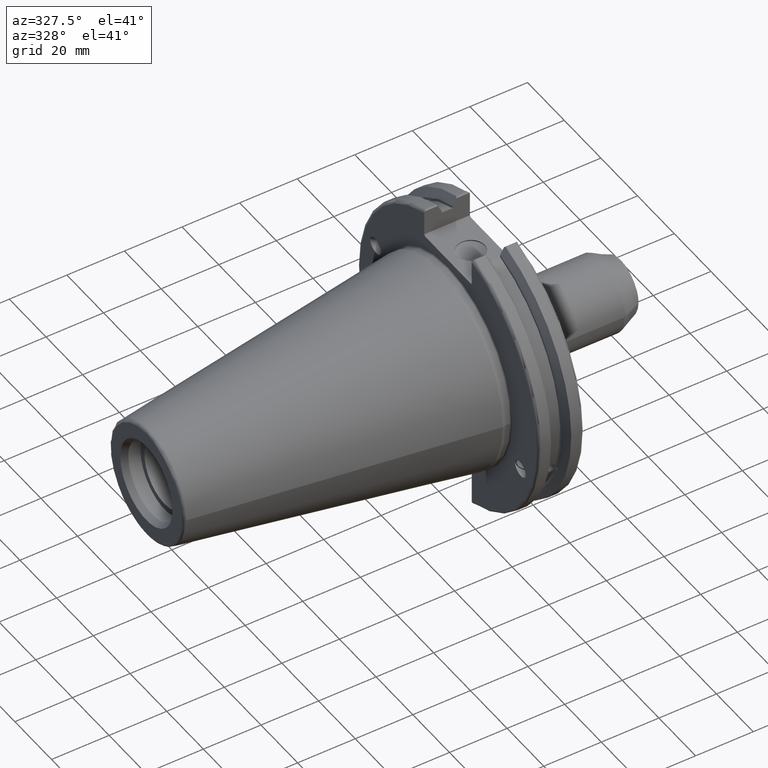
[diagram: clean part render]
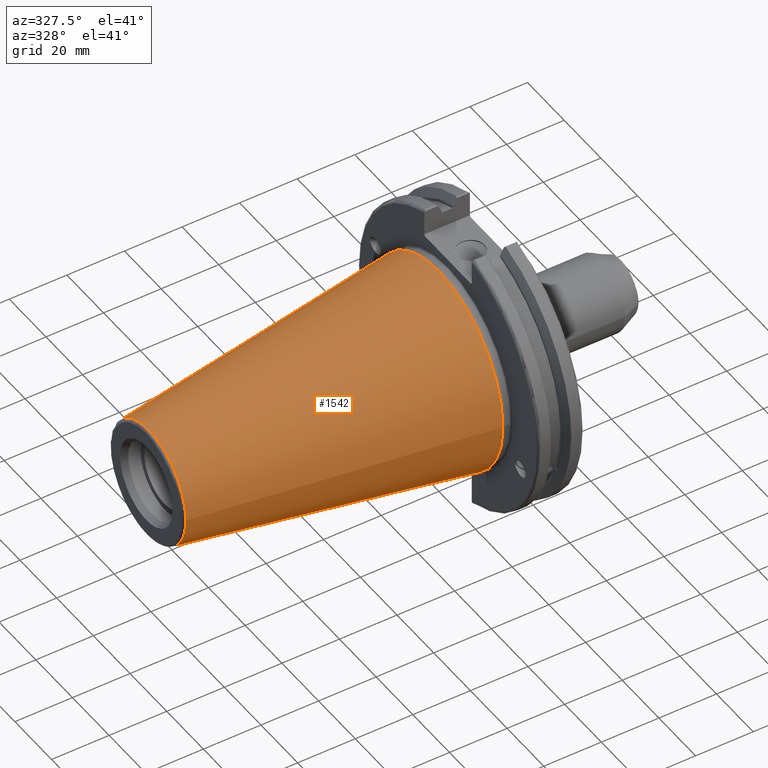
[diagram: same view with one face highlighted and labeled with its STEP entity id]
A machine part, auxiliary view. The second image highlights one B-rep face of the part: STEP entity #1542.
In plain terms, the highlighted conical surface has half-angle 8.297 deg.
Its self-contained STEP definition (entity closure, byte-faithful):
#159=CIRCLE('',#1713,20.233121911427);
#160=CIRCLE('',#1714,20.233121911427);
#164=CIRCLE('',#1720,34.925);
#184=CONICAL_SURFACE('',#1719,27.5166666666666,0.14481249823894);
#247=FACE_OUTER_BOUND('',#351,.T.);
#351=EDGE_LOOP('',(#1327,#1328,#1329,#1330,#1331));
#458=LINE('',#3139,#551);
#551=VECTOR('',#2092,27.5166666666666);
#753=VERTEX_POINT('',#3126);
#754=VERTEX_POINT('',#3127);
#757=VERTEX_POINT('',#3137);
#960=EDGE_CURVE('',#753,#754,#159,.T.);
#961=EDGE_CURVE('',#754,#753,#160,.T.);
#965=EDGE_CURVE('',#757,#757,#164,.T.);
#966=EDGE_CURVE('',#757,#754,#458,.T.);
#1327=ORIENTED_EDGE('',*,*,#965,.F.);
#1328=ORIENTED_EDGE('',*,*,#966,.T.);
#1329=ORIENTED_EDGE('',*,*,#960,.F.);
#1330=ORIENTED_EDGE('',*,*,#961,.F.);
#1331=ORIENTED_EDGE('',*,*,#966,.F.);
#1542=ADVANCED_FACE('',(#247),#184,.T.);
#1713=AXIS2_PLACEMENT_3D('',#3128,#2076,#2077);
#1714=AXIS2_PLACEMENT_3D('',#3129,#2078,#2079);
#1719=AXIS2_PLACEMENT_3D('',#3136,#2088,#2089);
#1720=AXIS2_PLACEMENT_3D('',#3138,#2090,#2091);
#2076=DIRECTION('center_axis',(-1.,0.,0.));
#2077=DIRECTION('ref_axis',(0.,-1.,3.06161699786838E-17));
#2078=DIRECTION('center_axis',(-1.,0.,0.));
#2079=DIRECTION('ref_axis',(0.,-1.,3.06161699786838E-17));
#2088=DIRECTION('center_axis',(1.,0.,0.));
#2089=DIRECTION('ref_axis',(0.,1.,0.));
#2090=DIRECTION('center_axis',(1.,0.,0.));
#2091=DIRECTION('ref_axis',(0.,0.,-1.));
#2092=DIRECTION('',(-0.989532981063281,0.144306893071729,1.76724974695192E-17));
#3126=CARTESIAN_POINT('',(-100.744306893072,-2.47784279855872E-15,20.233121911427));
#3127=CARTESIAN_POINT('',(-100.744306893072,-20.233121911427,-2.47784279855872E-15));
#3128=CARTESIAN_POINT('Origin',(-100.744306893072,0.,-3.09730349819841E-15));
#3129=CARTESIAN_POINT('Origin',(-100.744306893072,0.,-3.09730349819841E-15));
#3136=CARTESIAN_POINT('Origin',(-50.8,0.,0.));
#3137=CARTESIAN_POINT('',(-8.88178419700125E-15,-34.925,-4.27707894602213E-15));
#3138=CARTESIAN_POINT('Origin',(0.,0.,0.));
#3139=CARTESIAN_POINT('',(-50.8,-27.5166666666666,-3.3698197756538E-15));